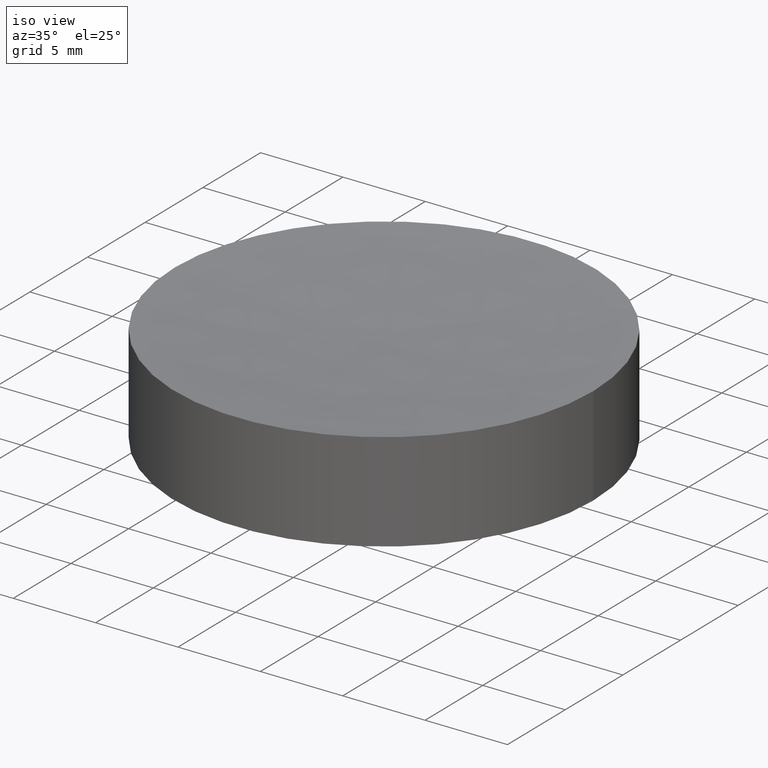
[diagram: clean part render]
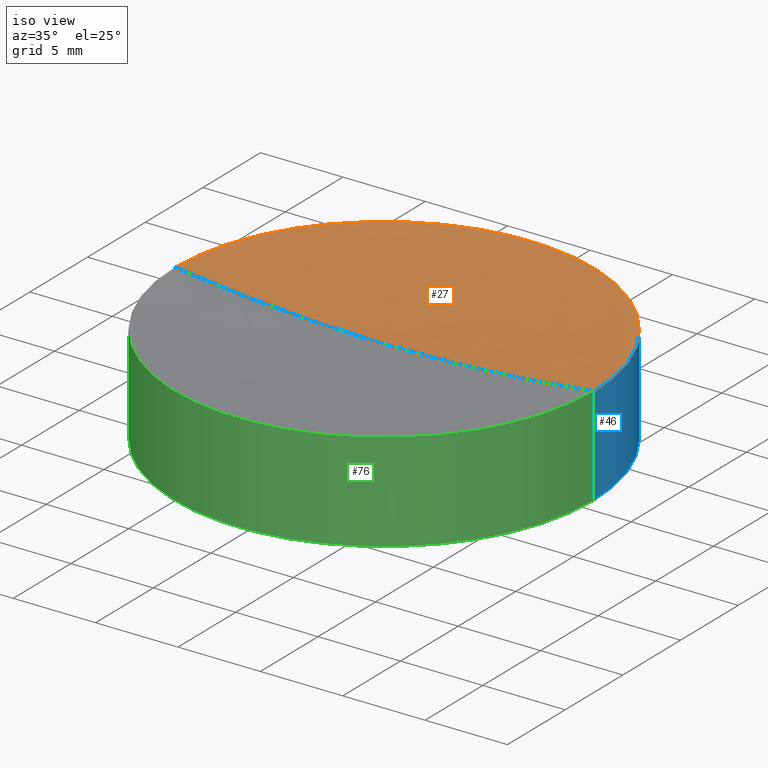
[diagram: same view with three faces highlighted in distinct colors, each labeled with its STEP entity id]
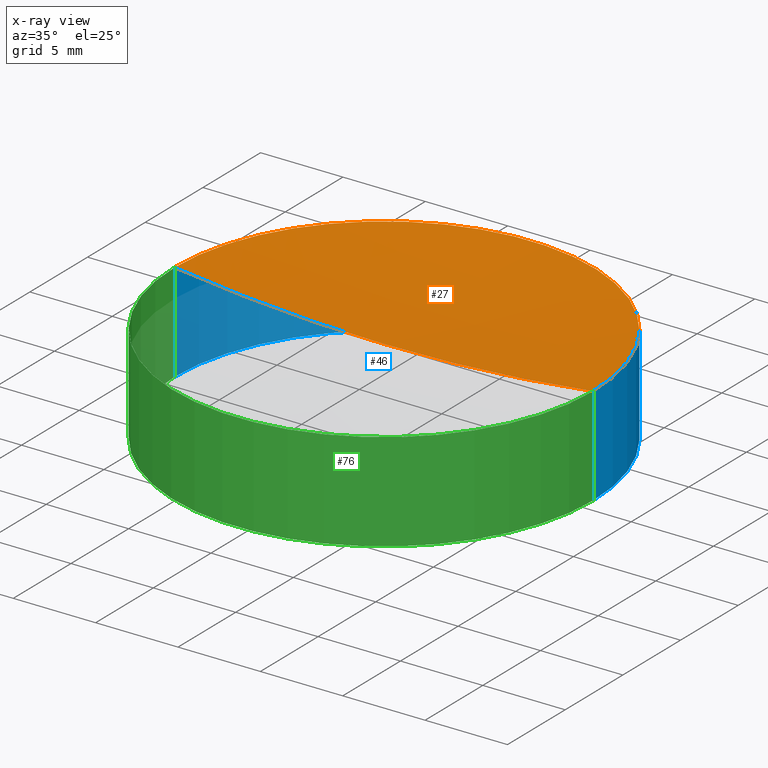
[diagram: x-ray of the same camera — body ghosted, the three highlighted faces saturated]
A machine part, iso view with three faces highlighted in distinct colors.
The next image is the same camera in x-ray (body ghosted, the three faces saturated) — at least one of them is partly hidden behind the body in this view.
Their STEP definitions:

[orange] entity #27 — the highlighted spherical surface has radius 100 mm.
#3 = DIRECTION ( 'NONE',  ( 1.000000000000000000, 1.224646799147353207E-16, 0.000000000000000000 ) ) ;
#8 = ORIENTED_EDGE ( 'NONE', *, *, #97, .F. ) ;
#27 = ADVANCED_FACE ( 'NONE', ( #159 ), #148, .F. ) ;
#36 = DIRECTION ( 'NONE',  ( 0.000000000000000000, 0.000000000000000000, 1.000000000000000000 ) ) ;
#39 = EDGE_CURVE ( 'NONE', #87, #42, #59, .T. ) ;
#40 = CARTESIAN_POINT ( 'NONE',  ( 12.70000000000000284, 1.555301434917138827E-15, 6.000000000000005329 ) ) ;
#41 = CARTESIAN_POINT ( 'NONE',  ( 1.387778780781445676E-14, 0.000000000000000000, 105.1902717004041818 ) ) ;
#42 = VERTEX_POINT ( 'NONE', #112 ) ;
#48 = CARTESIAN_POINT ( 'NONE',  ( -12.69999999999997264, 0.000000000000000000, 6.000000000000005329 ) ) ;
#51 = VERTEX_POINT ( 'NONE', #40 ) ;
#59 = CIRCLE ( 'NONE', #190, 100.0000000000000000 ) ;
#82 = CIRCLE ( 'NONE', #107, 12.69999999999998685 ) ;
#83 = CARTESIAN_POINT ( 'NONE',  ( 1.387778780781445676E-14, 0.000000000000000000, 6.000000000000005329 ) ) ;
#86 = CARTESIAN_POINT ( 'NONE',  ( 1.387778780781445676E-14, 0.000000000000000000, 105.1902717004041818 ) ) ;
#87 = VERTEX_POINT ( 'NONE', #48 ) ;
#94 = EDGE_CURVE ( 'NONE', #51, #42, #177, .T. ) ;
#96 = DIRECTION ( 'NONE',  ( 1.000000000000000000, 0.000000000000000000, 0.000000000000000000 ) ) ;
#97 = EDGE_CURVE ( 'NONE', #87, #51, #82, .T. ) ;
#102 = DIRECTION ( 'NONE',  ( 1.224646799147353207E-16, -1.000000000000000000, 0.000000000000000000 ) ) ;
#107 = AXIS2_PLACEMENT_3D ( 'NONE', #83, #167, #96 ) ;
#112 = CARTESIAN_POINT ( 'NONE',  ( 2.000102180355122047E-14, 0.000000000000000000, 5.190271700404175625 ) ) ;
#115 = CARTESIAN_POINT ( 'NONE',  ( 1.387778780781445676E-14, 0.000000000000000000, 105.1902717004041818 ) ) ;
#123 = AXIS2_PLACEMENT_3D ( 'NONE', #115, #197, #168 ) ;
#129 = ORIENTED_EDGE ( 'NONE', *, *, #39, .T. ) ;
#133 = ORIENTED_EDGE ( 'NONE', *, *, #94, .F. ) ;
#148 = SPHERICAL_SURFACE ( 'NONE', #123, 100.0000000000000000 ) ;
#149 = EDGE_LOOP ( 'NONE', ( #8, #129, #133 ) ) ;
#159 = FACE_OUTER_BOUND ( 'NONE', #149, .T. ) ;
#165 = AXIS2_PLACEMENT_3D ( 'NONE', #86, #181, #36 ) ;
#167 = DIRECTION ( 'NONE',  ( -0.000000000000000000, -0.000000000000000000, -1.000000000000000000 ) ) ;
#168 = DIRECTION ( 'NONE',  ( 1.000000000000000000, 0.000000000000000000, 0.000000000000000000 ) ) ;
#177 = CIRCLE ( 'NONE', #165, 100.0000000000000000 ) ;
#181 = DIRECTION ( 'NONE',  ( 0.000000000000000000, 1.000000000000000000, -0.000000000000000000 ) ) ;
#190 = AXIS2_PLACEMENT_3D ( 'NONE', #41, #102, #3 ) ;
#197 = DIRECTION ( 'NONE',  ( 0.000000000000000000, -1.000000000000000000, -0.000000000000000000 ) ) ;

[blue] entity #46 — the highlighted cylindrical surface (partial cylindrical patch) has radius 12.7 mm, axis along (-0, -0, -1).
#5 = CARTESIAN_POINT ( 'NONE',  ( 0.000000000000000000, 0.000000000000000000, 6.000000000000000000 ) ) ;
#10 = ORIENTED_EDGE ( 'NONE', *, *, #109, .F. ) ;
#19 = VECTOR ( 'NONE', #131, 1000.000000000000000 ) ;
#21 = VERTEX_POINT ( 'NONE', #49 ) ;
#22 = CARTESIAN_POINT ( 'NONE',  ( 0.000000000000000000, 0.000000000000000000, 0.000000000000000000 ) ) ;
#34 = CIRCLE ( 'NONE', #154, 12.69999999999999929 ) ;
#35 = EDGE_CURVE ( 'NONE', #21, #152, #34, .T. ) ;
#37 = CARTESIAN_POINT ( 'NONE',  ( -12.69999999999999929, 0.000000000000000000, 0.000000000000000000 ) ) ;
#40 = CARTESIAN_POINT ( 'NONE',  ( 12.70000000000000284, 1.555301434917138827E-15, 6.000000000000005329 ) ) ;
#46 = ADVANCED_FACE ( 'NONE', ( #90 ), #111, .T. ) ;
#47 = DIRECTION ( 'NONE',  ( 0.000000000000000000, 0.000000000000000000, 1.000000000000000000 ) ) ;
#48 = CARTESIAN_POINT ( 'NONE',  ( -12.69999999999997264, 0.000000000000000000, 6.000000000000005329 ) ) ;
#49 = CARTESIAN_POINT ( 'NONE',  ( 12.69999999999999929, 1.555301434917138433E-15, 0.000000000000000000 ) ) ;
#50 = DIRECTION ( 'NONE',  ( -0.000000000000000000, -0.000000000000000000, -1.000000000000000000 ) ) ;
#51 = VERTEX_POINT ( 'NONE', #40 ) ;
#66 = EDGE_CURVE ( 'NONE', #51, #21, #126, .T. ) ;
#67 = CARTESIAN_POINT ( 'NONE',  ( -12.69999999999999929, 0.000000000000000000, 6.000000000000000000 ) ) ;
#69 = DIRECTION ( 'NONE',  ( -1.000000000000000000, 0.000000000000000000, 0.000000000000000000 ) ) ;
#70 = EDGE_LOOP ( 'NONE', ( #191, #193, #169, #10 ) ) ;
#71 = VECTOR ( 'NONE', #166, 1000.000000000000000 ) ;
#82 = CIRCLE ( 'NONE', #107, 12.69999999999998685 ) ;
#83 = CARTESIAN_POINT ( 'NONE',  ( 1.387778780781445676E-14, 0.000000000000000000, 6.000000000000005329 ) ) ;
#87 = VERTEX_POINT ( 'NONE', #48 ) ;
#90 = FACE_OUTER_BOUND ( 'NONE', #70, .T. ) ;
#96 = DIRECTION ( 'NONE',  ( 1.000000000000000000, 0.000000000000000000, 0.000000000000000000 ) ) ;
#97 = EDGE_CURVE ( 'NONE', #87, #51, #82, .T. ) ;
#107 = AXIS2_PLACEMENT_3D ( 'NONE', #83, #167, #96 ) ;
#109 = EDGE_CURVE ( 'NONE', #87, #152, #127, .T. ) ;
#111 = CYLINDRICAL_SURFACE ( 'NONE', #146, 12.69999999999999929 ) ;
#126 = LINE ( 'NONE', #151, #71 ) ;
#127 = LINE ( 'NONE', #67, #19 ) ;
#131 = DIRECTION ( 'NONE',  ( -0.000000000000000000, -0.000000000000000000, -1.000000000000000000 ) ) ;
#146 = AXIS2_PLACEMENT_3D ( 'NONE', #5, #50, #69 ) ;
#151 = CARTESIAN_POINT ( 'NONE',  ( 12.69999999999999929, 1.555301434917138433E-15, 6.000000000000000000 ) ) ;
#152 = VERTEX_POINT ( 'NONE', #37 ) ;
#154 = AXIS2_PLACEMENT_3D ( 'NONE', #22, #47, #183 ) ;
#166 = DIRECTION ( 'NONE',  ( -0.000000000000000000, -0.000000000000000000, -1.000000000000000000 ) ) ;
#167 = DIRECTION ( 'NONE',  ( -0.000000000000000000, -0.000000000000000000, -1.000000000000000000 ) ) ;
#169 = ORIENTED_EDGE ( 'NONE', *, *, #35, .T. ) ;
#183 = DIRECTION ( 'NONE',  ( 1.000000000000000000, 0.000000000000000000, 0.000000000000000000 ) ) ;
#191 = ORIENTED_EDGE ( 'NONE', *, *, #97, .T. ) ;
#193 = ORIENTED_EDGE ( 'NONE', *, *, #66, .T. ) ;

[green] entity #76 — the highlighted cylindrical surface (partial cylindrical patch) has radius 12.7 mm, axis along (-0, -0, -1).
#6 = DIRECTION ( 'NONE',  ( -0.000000000000000000, -0.000000000000000000, -1.000000000000000000 ) ) ;
#19 = VECTOR ( 'NONE', #131, 1000.000000000000000 ) ;
#21 = VERTEX_POINT ( 'NONE', #49 ) ;
#24 = EDGE_CURVE ( 'NONE', #152, #21, #32, .T. ) ;
#32 = CIRCLE ( 'NONE', #81, 12.69999999999999929 ) ;
#37 = CARTESIAN_POINT ( 'NONE',  ( -12.69999999999999929, 0.000000000000000000, 0.000000000000000000 ) ) ;
#40 = CARTESIAN_POINT ( 'NONE',  ( 12.70000000000000284, 1.555301434917138827E-15, 6.000000000000005329 ) ) ;
#48 = CARTESIAN_POINT ( 'NONE',  ( -12.69999999999997264, 0.000000000000000000, 6.000000000000005329 ) ) ;
#49 = CARTESIAN_POINT ( 'NONE',  ( 12.69999999999999929, 1.555301434917138433E-15, 0.000000000000000000 ) ) ;
#51 = VERTEX_POINT ( 'NONE', #40 ) ;
#52 = FACE_OUTER_BOUND ( 'NONE', #68, .T. ) ;
#53 = ORIENTED_EDGE ( 'NONE', *, *, #160, .T. ) ;
#56 = CARTESIAN_POINT ( 'NONE',  ( 0.000000000000000000, 0.000000000000000000, 0.000000000000000000 ) ) ;
#64 = CYLINDRICAL_SURFACE ( 'NONE', #188, 12.69999999999999929 ) ;
#65 = ORIENTED_EDGE ( 'NONE', *, *, #66, .F. ) ;
#66 = EDGE_CURVE ( 'NONE', #51, #21, #126, .T. ) ;
#67 = CARTESIAN_POINT ( 'NONE',  ( -12.69999999999999929, 0.000000000000000000, 6.000000000000000000 ) ) ;
#68 = EDGE_LOOP ( 'NONE', ( #65, #53, #134, #150 ) ) ;
#71 = VECTOR ( 'NONE', #166, 1000.000000000000000 ) ;
#76 = ADVANCED_FACE ( 'NONE', ( #52 ), #64, .T. ) ;
#81 = AXIS2_PLACEMENT_3D ( 'NONE', #56, #120, #186 ) ;
#87 = VERTEX_POINT ( 'NONE', #48 ) ;
#98 = CARTESIAN_POINT ( 'NONE',  ( 1.387778780781445676E-14, 0.000000000000000000, 6.000000000000005329 ) ) ;
#109 = EDGE_CURVE ( 'NONE', #87, #152, #127, .T. ) ;
#113 = DIRECTION ( 'NONE',  ( -0.000000000000000000, -0.000000000000000000, -1.000000000000000000 ) ) ;
#120 = DIRECTION ( 'NONE',  ( 0.000000000000000000, 0.000000000000000000, 1.000000000000000000 ) ) ;
#126 = LINE ( 'NONE', #151, #71 ) ;
#127 = LINE ( 'NONE', #67, #19 ) ;
#128 = DIRECTION ( 'NONE',  ( 1.000000000000000000, 0.000000000000000000, 0.000000000000000000 ) ) ;
#131 = DIRECTION ( 'NONE',  ( -0.000000000000000000, -0.000000000000000000, -1.000000000000000000 ) ) ;
#132 = CIRCLE ( 'NONE', #170, 12.69999999999998685 ) ;
#134 = ORIENTED_EDGE ( 'NONE', *, *, #109, .T. ) ;
#150 = ORIENTED_EDGE ( 'NONE', *, *, #24, .T. ) ;
#151 = CARTESIAN_POINT ( 'NONE',  ( 12.69999999999999929, 1.555301434917138433E-15, 6.000000000000000000 ) ) ;
#152 = VERTEX_POINT ( 'NONE', #37 ) ;
#160 = EDGE_CURVE ( 'NONE', #51, #87, #132, .T. ) ;
#166 = DIRECTION ( 'NONE',  ( -0.000000000000000000, -0.000000000000000000, -1.000000000000000000 ) ) ;
#170 = AXIS2_PLACEMENT_3D ( 'NONE', #98, #6, #128 ) ;
#182 = DIRECTION ( 'NONE',  ( -1.000000000000000000, 0.000000000000000000, 0.000000000000000000 ) ) ;
#186 = DIRECTION ( 'NONE',  ( 1.000000000000000000, 0.000000000000000000, 0.000000000000000000 ) ) ;
#188 = AXIS2_PLACEMENT_3D ( 'NONE', #192, #113, #182 ) ;
#192 = CARTESIAN_POINT ( 'NONE',  ( 0.000000000000000000, 0.000000000000000000, 6.000000000000000000 ) ) ;